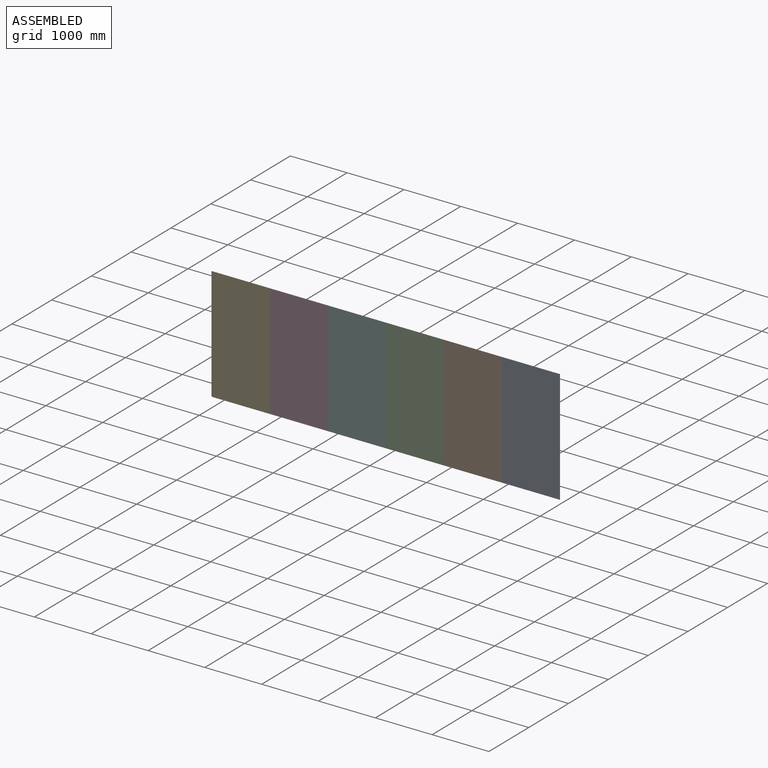
[diagram: assembled view]
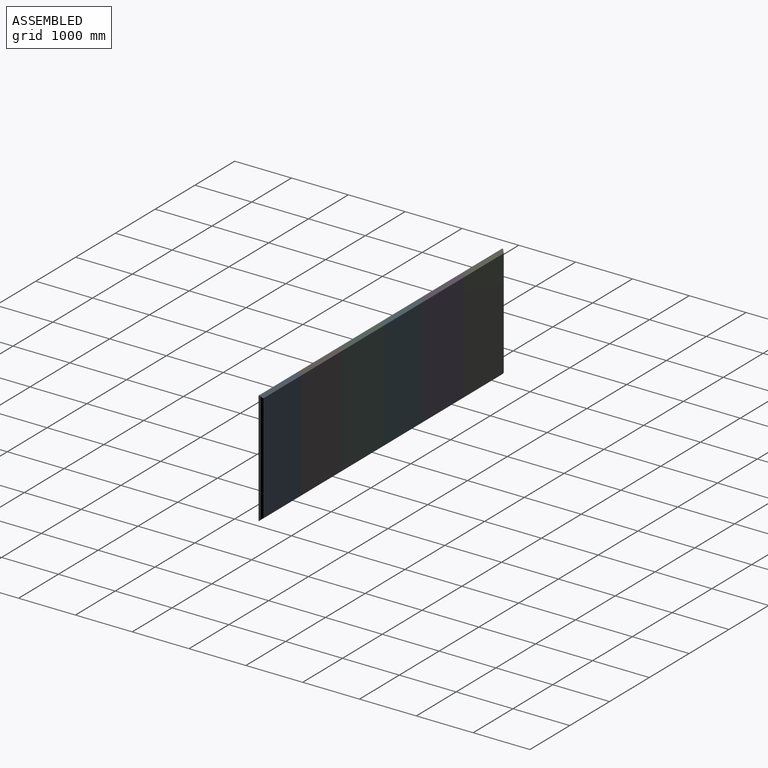
[diagram: assembled view, second angle]
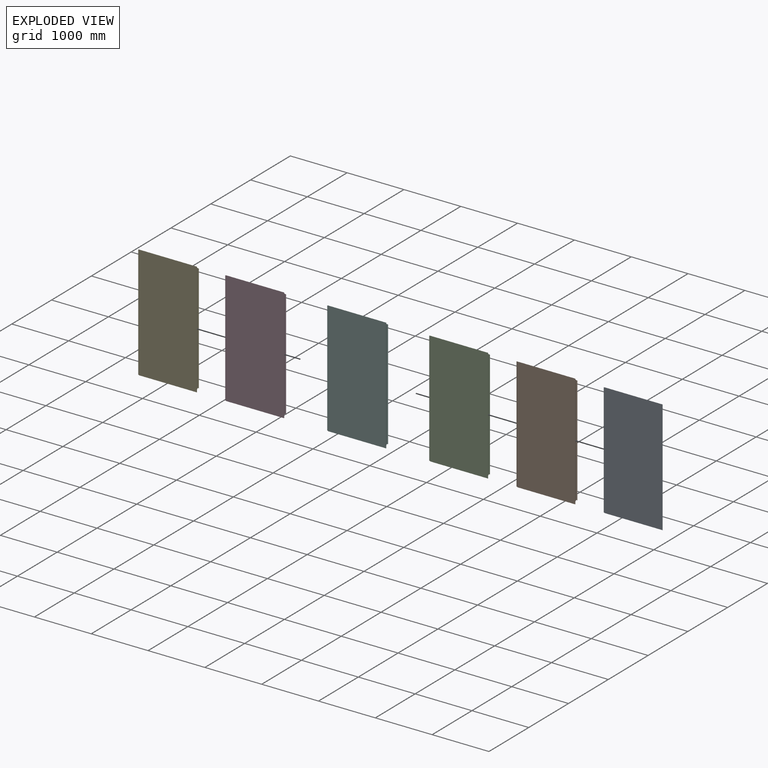
[diagram: exploded view]
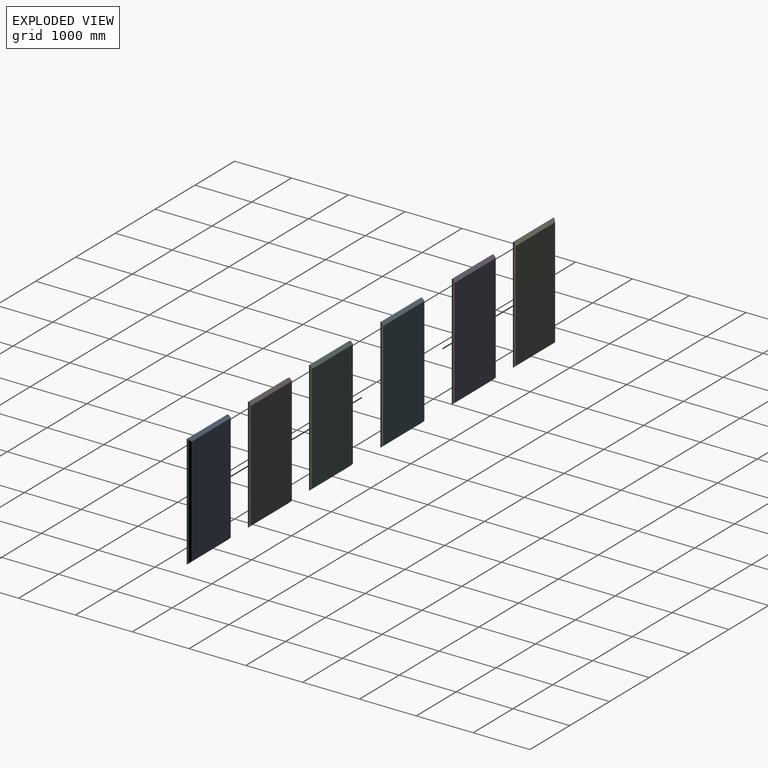
[diagram: exploded view, second angle]
ASSEMBLY  parts=6 mates=2
PART A: 13 faces, bbox 2000x1039x50 mm
  f0: plane 1990x40mm, normal (0,1,0), area 78000mm2, adj f3,f4,f11,f12
  f1: plane 1900x970mm, normal (0,0,1), area 1843000mm2, adj f5,f6,f11,f12
  f2: cylinder r=1mm len=2000mm, axis (-1,0,0), area 5965.6mm2, adj f3,f10,f11,f12
  f3: plane 1996.02x19.16mm, normal (0,0.16,-0.99), area 38645.9mm2, adj f0,f2,f11,f12
  f4: plane 1910x19.16mm, normal (0,0.16,0.99), area 36977.9mm2, adj f0,f5,f11,f12
  f5: cylinder r=1mm len=1903.98mm, axis (-1,0,0), area 5678.3mm2, adj f1,f4,f11,f12
  f6: plane 1962x31mm, normal (0,-0.71,0.71), area 84656.2mm2, adj f1,f7,f11,f12
  f7: plane 1990x14mm, normal (0,-1,0), area 27664mm2, adj f6,f8,f11,f12
  f8: plane 1995.22x16.61mm, normal (0,-0.16,0.99), area 33508.5mm2, adj f7,f9,f11,f12
  f9: plane 2000x2.39mm, normal (0,-0.71,0.71), area 6745.5mm2, adj f8,f10,f11,f12
  f10: plane 2000x1020mm, normal (0,0,-1), area 2040000mm2, adj f2,f9,f11,f12
  f11: plane 1039x50mm, normal (-0.71,0,0.71), area 71343.3mm2, adj f0,f1,f2,f3,f4,f5,f6,f7
  f12: plane 1039x50mm, normal (0.71,0,0.71), area 71343.3mm2, adj f0,f1,f2,f3,f4,f5,f6,f7
PART B: 14 faces, bbox 2000x1040x50 mm
  f0: plane 1990x40mm, normal (0,1,0), area 78000mm2, adj f7,f8,f12,f13
  f1: plane 1900x1020mm, normal (0,0,1), area 1938000mm2, adj f9,f10,f12,f13
  f2: plane 1910x19.16mm, normal (0,-0.16,-0.99), area 36977.9mm2, adj f3,f10,f12,f13
  f3: plane 1990x40mm, normal (0,-1,0), area 78000mm2, adj f2,f4,f12,f13
  f4: plane 1996.02x19.16mm, normal (0,-0.16,0.99), area 38645.9mm2, adj f3,f5,f12,f13
  f5: cylinder r=1mm len=2000mm, axis (-1,0,0), area 5965.6mm2, adj f4,f11,f12,f13
  f6: cylinder r=1mm len=2000mm, axis (-1,0,0), area 5965.6mm2, adj f7,f11,f12,f13
  f7: plane 1996.02x19.16mm, normal (0,0.16,-0.99), area 38645.9mm2, adj f0,f6,f12,f13
  f8: plane 1910x19.16mm, normal (0,0.16,0.99), area 36977.9mm2, adj f0,f9,f12,f13
  f9: cylinder r=1mm len=1903.98mm, axis (-1,0,0), area 5678.3mm2, adj f1,f8,f12,f13
  f10: cylinder r=1mm len=1903.98mm, axis (-1,0,0), area 5678.3mm2, adj f1,f2,f12,f13
  f11: plane 2000x1020mm, normal (0,0,-1), area 2040000mm2, adj f5,f6,f12,f13
  f12: plane 1040x50mm, normal (-0.71,0,0.71), area 72124.9mm2, adj f0,f1,f2,f3,f4,f5,f6,f7
  f13: plane 1040x50mm, normal (0.71,0,0.71), area 72124.9mm2, adj f0,f1,f2,f3,f4,f5,f6,f7
PART C: same geometry as B
PART D: same geometry as B
PART E: 12 faces, bbox 2000x1035.7x50 mm
  f0: plane 1900x989mm, normal (0,0,1), area 1879100mm2, adj f2,f3,f9,f11
  f1: plane 1996.02x14.83mm, normal (0,0.16,-0.99), area 29939.3mm2, adj f2,f3,f8,f11
  f2: plane 1035.68x50mm, normal (-0.71,0,0.71), area 70468.8mm2, adj f0,f1,f4,f5,f6,f7,f8,f9
  f3: plane 1035.68x50mm, normal (0.71,0,0.71), area 70468.8mm2, adj f0,f1,f4,f5,f6,f7,f8,f9
  f4: plane 1910x19.16mm, normal (0,-0.16,-0.99), area 36977.9mm2, adj f2,f3,f5,f9
  f5: plane 1990x40mm, normal (0,-1,0), area 78000mm2, adj f2,f3,f4,f6
  f6: plane 1996.02x19.16mm, normal (0,-0.16,0.99), area 38645.9mm2, adj f2,f3,f5,f7
  f7: cylinder r=1mm len=2000mm, axis (-1,0,0), area 5965.6mm2, adj f2,f3,f6,f10
  f8: cylinder r=1mm len=2000mm, axis (-1,0,0), area 5965.6mm2, adj f1,f2,f3,f10
  f9: cylinder r=1mm len=1903.98mm, axis (-1,0,0), area 5678.3mm2, adj f0,f2,f3,f4
  f10: plane 2000x1020mm, normal (0,0,-1), area 2040000mm2, adj f2,f3,f7,f8
  f11: plane 1991.36x45.68mm, normal (0,0.71,0.71), area 125691.7mm2, adj f0,f1,f2,f3
PART F: same geometry as B
PLACE A rot(axis=(-0.58,0.58,0.58),120deg) t=(514.76,-526.11,-336.83)mm
PLACE B rot(axis=(-0.58,0.58,0.58),120deg) t=(-505.24,-526.11,-336.83)mm
PLACE C rot(axis=(-0.58,0.58,0.58),120deg) t=(-1525.24,-526.11,-336.83)mm
PLACE D rot(axis=(-0.58,0.58,0.58),120deg) t=(-3565.24,-526.11,-336.83)mm
PLACE E rot(axis=(-0.58,0.58,0.58),120deg) t=(-4585.24,-526.11,-336.83)mm
PLACE F rot(axis=(-0.58,0.58,0.58),120deg) t=(-2545.24,-526.11,-336.83)mm
MATE fastened E.f5 <-> D.f0  axis (1,0,0) through (-4085.24,-526.11,638.17)mm
MATE fastened A.f0 <-> B.f3  axis (-1,0,0) through (-5.24,-526.11,638.17)mm
